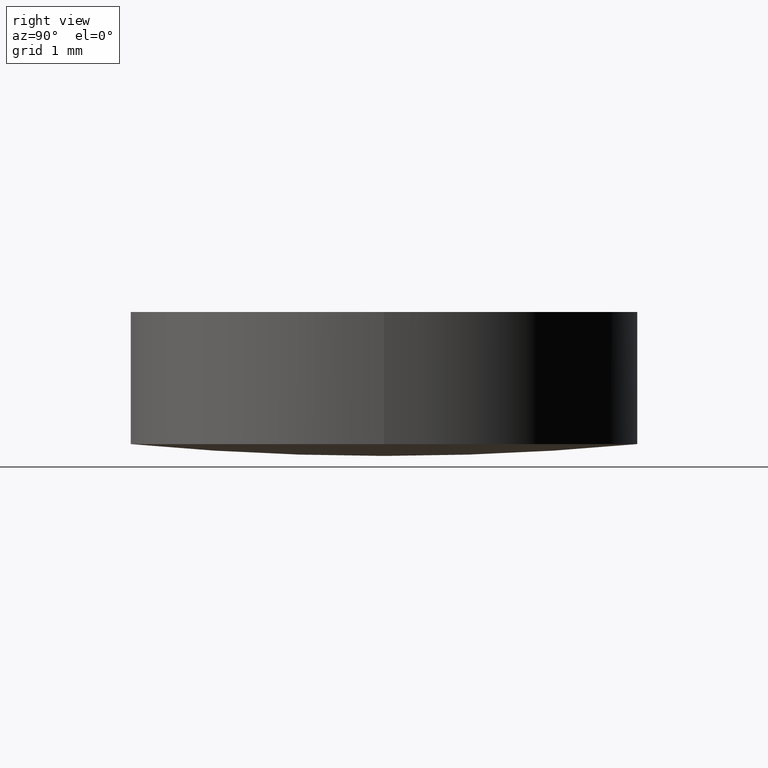
[diagram: clean part render]
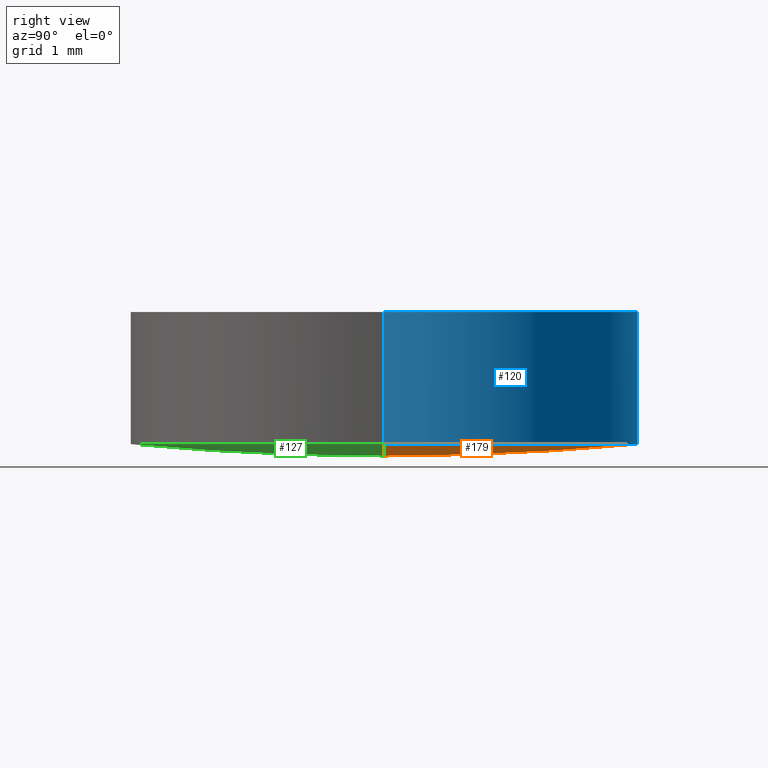
[diagram: same view with three faces highlighted in distinct colors, each labeled with its STEP entity id]
A machine part, right view with three faces highlighted in distinct colors.
Their STEP definitions:

[orange] entity #179 — the highlighted toroidal blend (fillet) surface has major radius 0.0134 mm and minor (blend) radius 32.5 mm.
#1 = AXIS2_PLACEMENT_3D ( 'NONE', #162, #22, #89 ) ;
#2 = CARTESIAN_POINT ( 'NONE',  ( 0.000000000000000000, 0.000000000000000000, -1.559999999999999609 ) ) ;
#5 = CARTESIAN_POINT ( 'NONE',  ( 0.000000000000000000, 0.000000000000000000, -1.699999999999999956 ) ) ;
#6 = VERTEX_POINT ( 'NONE', #5 ) ;
#7 = VERTEX_POINT ( 'NONE', #121 ) ;
#17 = TOROIDAL_SURFACE ( 'NONE', #35, -0.01339987108760687037, 32.50000000000000000 ) ;
#22 = DIRECTION ( 'NONE',  ( 0.000000000000000000, -1.000000000000000000, 0.000000000000000000 ) ) ;
#23 = ORIENTED_EDGE ( 'NONE', *, *, #174, .T. ) ;
#35 = AXIS2_PLACEMENT_3D ( 'NONE', #78, #47, #167 ) ;
#36 = DIRECTION ( 'NONE',  ( -0.000000000000000000, -0.000000000000000000, -1.000000000000000000 ) ) ;
#38 = ORIENTED_EDGE ( 'NONE', *, *, #65, .T. ) ;
#43 = EDGE_CURVE ( 'NONE', #7, #6, #67, .T. ) ;
#47 = DIRECTION ( 'NONE',  ( -0.000000000000000000, -0.000000000000000000, -1.000000000000000000 ) ) ;
#49 = AXIS2_PLACEMENT_3D ( 'NONE', #2, #36, #104 ) ;
#65 = EDGE_CURVE ( 'NONE', #90, #6, #182, .T. ) ;
#67 = CIRCLE ( 'NONE', #1, 32.50000000000000000 ) ;
#72 = CARTESIAN_POINT ( 'NONE',  ( -0.01339987108760687037, -1.641010923642491594E-18, 30.79999723759149433 ) ) ;
#78 = CARTESIAN_POINT ( 'NONE',  ( 0.000000000000000000, 0.000000000000000000, 30.79999723759149433 ) ) ;
#89 = DIRECTION ( 'NONE',  ( 0.000000000000000000, 0.000000000000000000, -1.000000000000000000 ) ) ;
#90 = VERTEX_POINT ( 'NONE', #176 ) ;
#104 = DIRECTION ( 'NONE',  ( -1.000000000000000000, 0.000000000000000000, 0.000000000000000000 ) ) ;
#107 = EDGE_LOOP ( 'NONE', ( #23, #38, #180 ) ) ;
#121 = CARTESIAN_POINT ( 'NONE',  ( -2.999999999999999112, 0.000000000000000000, -1.559999999999997611 ) ) ;
#123 = AXIS2_PLACEMENT_3D ( 'NONE', #72, #133, #195 ) ;
#133 = DIRECTION ( 'NONE',  ( -1.224646799147353207E-16, 1.000000000000000000, 0.000000000000000000 ) ) ;
#162 = CARTESIAN_POINT ( 'NONE',  ( 0.01339987108760687037, 0.000000000000000000, 30.79999723759149433 ) ) ;
#167 = DIRECTION ( 'NONE',  ( -1.000000000000000000, 0.000000000000000000, 0.000000000000000000 ) ) ;
#174 = EDGE_CURVE ( 'NONE', #7, #90, #199, .T. ) ;
#176 = CARTESIAN_POINT ( 'NONE',  ( 2.999999999999999112, 3.673940397442059375E-16, -1.559999999999997611 ) ) ;
#179 = ADVANCED_FACE ( 'NONE', ( #187 ), #17, .T. ) ;
#180 = ORIENTED_EDGE ( 'NONE', *, *, #43, .F. ) ;
#182 = CIRCLE ( 'NONE', #123, 32.50000000000000000 ) ;
#187 = FACE_OUTER_BOUND ( 'NONE', #107, .T. ) ;
#195 = DIRECTION ( 'NONE',  ( -1.000000000000000000, -1.224646799147353454E-16, 0.000000000000000000 ) ) ;
#199 = CIRCLE ( 'NONE', #49, 3.000000000000000000 ) ;

[blue] entity #120 — the highlighted cylindrical surface (partial cylindrical patch) has radius 3 mm, axis along (-0, -0, -1).
#2 = CARTESIAN_POINT ( 'NONE',  ( 0.000000000000000000, 0.000000000000000000, -1.559999999999999609 ) ) ;
#7 = VERTEX_POINT ( 'NONE', #121 ) ;
#18 = CARTESIAN_POINT ( 'NONE',  ( -3.000000000000000000, 0.000000000000000000, 4.336808689942017736E-16 ) ) ;
#29 = CIRCLE ( 'NONE', #141, 3.000000000000000000 ) ;
#30 = VECTOR ( 'NONE', #86, 1000.000000000000000 ) ;
#31 = ORIENTED_EDGE ( 'NONE', *, *, #81, .T. ) ;
#33 = EDGE_LOOP ( 'NONE', ( #197, #31, #98, #71 ) ) ;
#34 = DIRECTION ( 'NONE',  ( -0.000000000000000000, -0.000000000000000000, -1.000000000000000000 ) ) ;
#36 = DIRECTION ( 'NONE',  ( -0.000000000000000000, -0.000000000000000000, -1.000000000000000000 ) ) ;
#49 = AXIS2_PLACEMENT_3D ( 'NONE', #2, #36, #104 ) ;
#54 = DIRECTION ( 'NONE',  ( -1.000000000000000000, 0.000000000000000000, 0.000000000000000000 ) ) ;
#55 = CARTESIAN_POINT ( 'NONE',  ( 0.000000000000000000, 0.000000000000000000, -1.699999999999999956 ) ) ;
#56 = CARTESIAN_POINT ( 'NONE',  ( 3.000000000000000000, 3.673940397442059868E-16, -1.699999999999999956 ) ) ;
#64 = CARTESIAN_POINT ( 'NONE',  ( 0.000000000000000000, 0.000000000000000000, 4.336808689942017736E-16 ) ) ;
#71 = ORIENTED_EDGE ( 'NONE', *, *, #105, .F. ) ;
#75 = AXIS2_PLACEMENT_3D ( 'NONE', #55, #175, #54 ) ;
#81 = EDGE_CURVE ( 'NONE', #196, #90, #148, .T. ) ;
#85 = CYLINDRICAL_SURFACE ( 'NONE', #75, 3.000000000000000000 ) ;
#86 = DIRECTION ( 'NONE',  ( -0.000000000000000000, -0.000000000000000000, -1.000000000000000000 ) ) ;
#90 = VERTEX_POINT ( 'NONE', #176 ) ;
#98 = ORIENTED_EDGE ( 'NONE', *, *, #174, .F. ) ;
#101 = VECTOR ( 'NONE', #34, 1000.000000000000000 ) ;
#104 = DIRECTION ( 'NONE',  ( -1.000000000000000000, 0.000000000000000000, 0.000000000000000000 ) ) ;
#105 = EDGE_CURVE ( 'NONE', #116, #7, #146, .T. ) ;
#115 = DIRECTION ( 'NONE',  ( -0.000000000000000000, -0.000000000000000000, -1.000000000000000000 ) ) ;
#116 = VERTEX_POINT ( 'NONE', #18 ) ;
#118 = FACE_OUTER_BOUND ( 'NONE', #33, .T. ) ;
#120 = ADVANCED_FACE ( 'NONE', ( #118 ), #85, .T. ) ;
#121 = CARTESIAN_POINT ( 'NONE',  ( -2.999999999999999112, 0.000000000000000000, -1.559999999999997611 ) ) ;
#141 = AXIS2_PLACEMENT_3D ( 'NONE', #64, #115, #152 ) ;
#146 = LINE ( 'NONE', #161, #101 ) ;
#148 = LINE ( 'NONE', #56, #30 ) ;
#152 = DIRECTION ( 'NONE',  ( -1.000000000000000000, 0.000000000000000000, 0.000000000000000000 ) ) ;
#161 = CARTESIAN_POINT ( 'NONE',  ( -3.000000000000000000, 0.000000000000000000, -1.699999999999999956 ) ) ;
#174 = EDGE_CURVE ( 'NONE', #7, #90, #199, .T. ) ;
#175 = DIRECTION ( 'NONE',  ( -0.000000000000000000, -0.000000000000000000, -1.000000000000000000 ) ) ;
#176 = CARTESIAN_POINT ( 'NONE',  ( 2.999999999999999112, 3.673940397442059375E-16, -1.559999999999997611 ) ) ;
#189 = CARTESIAN_POINT ( 'NONE',  ( 3.000000000000000000, 3.673940397442059868E-16, 4.336808689942017736E-16 ) ) ;
#191 = EDGE_CURVE ( 'NONE', #116, #196, #29, .T. ) ;
#196 = VERTEX_POINT ( 'NONE', #189 ) ;
#197 = ORIENTED_EDGE ( 'NONE', *, *, #191, .T. ) ;
#199 = CIRCLE ( 'NONE', #49, 3.000000000000000000 ) ;

[green] entity #127 — the highlighted toroidal blend (fillet) surface has major radius 0.0134 mm and minor (blend) radius 32.5 mm.
#1 = AXIS2_PLACEMENT_3D ( 'NONE', #162, #22, #89 ) ;
#3 = CARTESIAN_POINT ( 'NONE',  ( 0.000000000000000000, 0.000000000000000000, 30.79999723759149433 ) ) ;
#5 = CARTESIAN_POINT ( 'NONE',  ( 0.000000000000000000, 0.000000000000000000, -1.699999999999999956 ) ) ;
#6 = VERTEX_POINT ( 'NONE', #5 ) ;
#7 = VERTEX_POINT ( 'NONE', #121 ) ;
#22 = DIRECTION ( 'NONE',  ( 0.000000000000000000, -1.000000000000000000, 0.000000000000000000 ) ) ;
#43 = EDGE_CURVE ( 'NONE', #7, #6, #67, .T. ) ;
#50 = ORIENTED_EDGE ( 'NONE', *, *, #43, .T. ) ;
#65 = EDGE_CURVE ( 'NONE', #90, #6, #182, .T. ) ;
#66 = AXIS2_PLACEMENT_3D ( 'NONE', #3, #69, #132 ) ;
#67 = CIRCLE ( 'NONE', #1, 32.50000000000000000 ) ;
#69 = DIRECTION ( 'NONE',  ( -0.000000000000000000, -0.000000000000000000, -1.000000000000000000 ) ) ;
#72 = CARTESIAN_POINT ( 'NONE',  ( -0.01339987108760687037, -1.641010923642491594E-18, 30.79999723759149433 ) ) ;
#87 = ORIENTED_EDGE ( 'NONE', *, *, #88, .T. ) ;
#88 = EDGE_CURVE ( 'NONE', #90, #7, #142, .T. ) ;
#89 = DIRECTION ( 'NONE',  ( 0.000000000000000000, 0.000000000000000000, -1.000000000000000000 ) ) ;
#90 = VERTEX_POINT ( 'NONE', #176 ) ;
#103 = DIRECTION ( 'NONE',  ( -0.000000000000000000, -0.000000000000000000, -1.000000000000000000 ) ) ;
#121 = CARTESIAN_POINT ( 'NONE',  ( -2.999999999999999112, 0.000000000000000000, -1.559999999999997611 ) ) ;
#123 = AXIS2_PLACEMENT_3D ( 'NONE', #72, #133, #195 ) ;
#127 = ADVANCED_FACE ( 'NONE', ( #130 ), #149, .T. ) ;
#130 = FACE_OUTER_BOUND ( 'NONE', #135, .T. ) ;
#132 = DIRECTION ( 'NONE',  ( -1.000000000000000000, 0.000000000000000000, 0.000000000000000000 ) ) ;
#133 = DIRECTION ( 'NONE',  ( -1.224646799147353207E-16, 1.000000000000000000, 0.000000000000000000 ) ) ;
#135 = EDGE_LOOP ( 'NONE', ( #171, #87, #50 ) ) ;
#142 = CIRCLE ( 'NONE', #154, 3.000000000000000000 ) ;
#149 = TOROIDAL_SURFACE ( 'NONE', #66, -0.01339987108760687037, 32.50000000000000000 ) ;
#154 = AXIS2_PLACEMENT_3D ( 'NONE', #192, #103, #160 ) ;
#160 = DIRECTION ( 'NONE',  ( -1.000000000000000000, 0.000000000000000000, 0.000000000000000000 ) ) ;
#162 = CARTESIAN_POINT ( 'NONE',  ( 0.01339987108760687037, 0.000000000000000000, 30.79999723759149433 ) ) ;
#171 = ORIENTED_EDGE ( 'NONE', *, *, #65, .F. ) ;
#176 = CARTESIAN_POINT ( 'NONE',  ( 2.999999999999999112, 3.673940397442059375E-16, -1.559999999999997611 ) ) ;
#182 = CIRCLE ( 'NONE', #123, 32.50000000000000000 ) ;
#192 = CARTESIAN_POINT ( 'NONE',  ( 0.000000000000000000, 0.000000000000000000, -1.559999999999999609 ) ) ;
#195 = DIRECTION ( 'NONE',  ( -1.000000000000000000, -1.224646799147353454E-16, 0.000000000000000000 ) ) ;